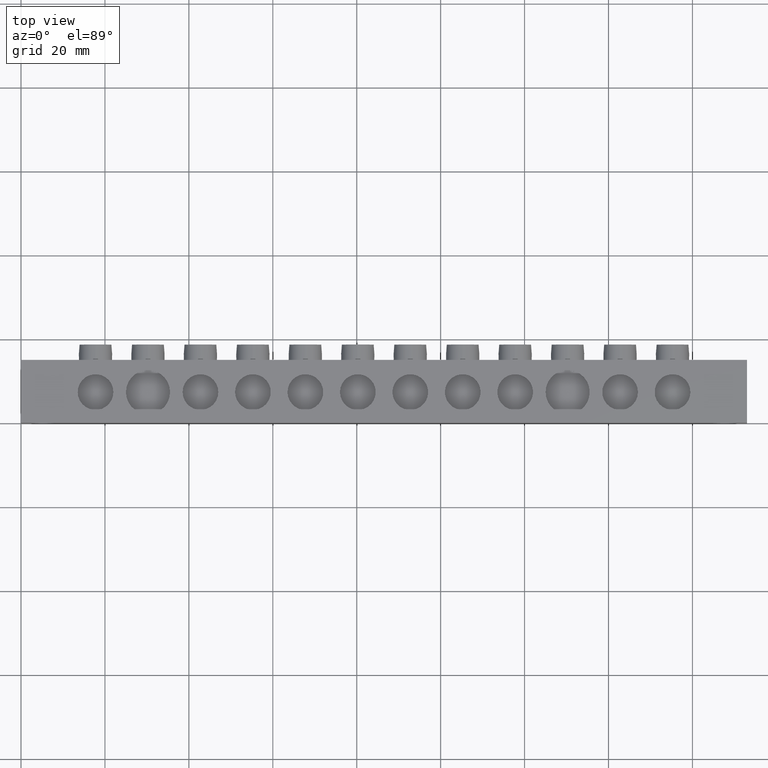
[diagram: clean part render]
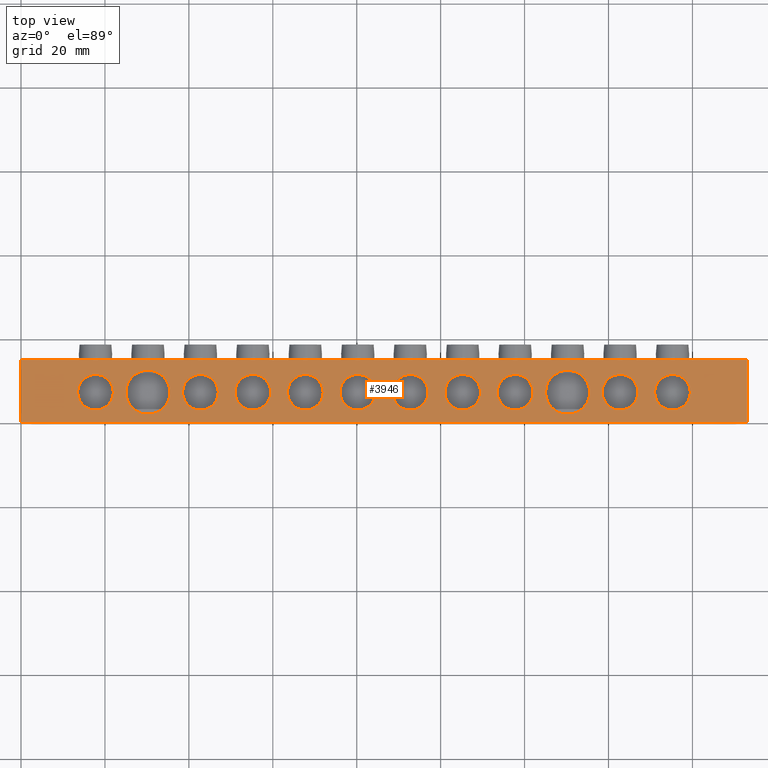
[diagram: same view with one face highlighted and labeled with its STEP entity id]
A machine part, top view. The second image highlights one B-rep face of the part: STEP entity #3946.
In plain terms, the highlighted planar face has unit normal (0, 0, -1).
Its self-contained STEP definition (entity closure, byte-faithful):
#376 = DIRECTION ( 'NONE',  ( 1.000000000000000000, 0.0000000000000000000, 0.0000000000000000000 ) ) ;
#383 = DIRECTION ( 'NONE',  ( 0.0000000000000000000, 0.0000000000000000000, 1.000000000000000000 ) ) ;
#391 = CARTESIAN_POINT ( 'NONE',  ( 142.7500000000000900, 7.299999999999998900, 0.0000000000000000000 ) ) ;
#399 = DIRECTION ( 'NONE',  ( -0.0000000000000000000, -0.0000000000000000000, 1.000000000000000000 ) ) ;
#400 = CARTESIAN_POINT ( 'NONE',  ( 17.75000000000000700, 7.299999999999998900, 0.0000000000000000000 ) ) ;
#406 = DIRECTION ( 'NONE',  ( -1.000000000000000000, 0.0000000000000000000, 0.0000000000000000000 ) ) ;
#540 = CARTESIAN_POINT ( 'NONE',  ( 30.25000000000000000, 7.299999999999998900, 0.0000000000000000000 ) ) ;
#551 = CARTESIAN_POINT ( 'NONE',  ( 105.2500000000000000, 7.299999999999989200, 0.0000000000000000000 ) ) ;
#555 = CARTESIAN_POINT ( 'NONE',  ( 155.2500000000000000, 7.299999999999998900, 0.0000000000000000000 ) ) ;
#559 = DIRECTION ( 'NONE',  ( 0.0000000000000000000, 0.0000000000000000000, 1.000000000000000000 ) ) ;
#567 = DIRECTION ( 'NONE',  ( 1.000000000000000000, 0.0000000000000000000, 0.0000000000000000000 ) ) ;
#568 = DIRECTION ( 'NONE',  ( 1.000000000000000000, 0.0000000000000000000, 0.0000000000000000000 ) ) ;
#577 = DIRECTION ( 'NONE',  ( 0.0000000000000000000, 0.0000000000000000000, 1.000000000000000000 ) ) ;
#578 = DIRECTION ( 'NONE',  ( 0.0000000000000000000, 0.0000000000000000000, 1.000000000000000000 ) ) ;
#587 = DIRECTION ( 'NONE',  ( 1.000000000000000000, 0.0000000000000000000, 0.0000000000000000000 ) ) ;
#590 = CARTESIAN_POINT ( 'NONE',  ( 130.2500000000000000, 7.299999999999998900, 0.0000000000000000000 ) ) ;
#602 = DIRECTION ( 'NONE',  ( -0.0000000000000000000, -0.0000000000000000000, 1.000000000000000000 ) ) ;
#605 = DIRECTION ( 'NONE',  ( -1.000000000000000000, 0.0000000000000000000, 0.0000000000000000000 ) ) ;
#636 = DIRECTION ( 'NONE',  ( 0.0000000000000000000, 0.0000000000000000000, 1.000000000000000000 ) ) ;
#640 = CARTESIAN_POINT ( 'NONE',  ( 117.7500000000000300, 7.299999999999992700, 0.0000000000000000000 ) ) ;
#642 = DIRECTION ( 'NONE',  ( 1.000000000000000000, 0.0000000000000000000, 0.0000000000000000000 ) ) ;
#1768 = AXIS2_PLACEMENT_3D ( 'NONE', #400, #383, #376 ) ;
#1773 = AXIS2_PLACEMENT_3D ( 'NONE', #391, #399, #406 ) ;
#1778 = CIRCLE ( 'NONE', #1773, 4.250000000000003600 ) ;
#1818 = CIRCLE ( 'NONE', #1768, 4.250000000000000000 ) ;
#1821 = CIRCLE ( 'NONE', #1840, 4.250000000000003600 ) ;
#1824 = CIRCLE ( 'NONE', #1871, 5.250000000000004400 ) ;
#1840 = AXIS2_PLACEMENT_3D ( 'NONE', #551, #577, #587 ) ;
#1844 = AXIS2_PLACEMENT_3D ( 'NONE', #555, #578, #568 ) ;
#1849 = CIRCLE ( 'NONE', #1844, 4.250000000000003600 ) ;
#1859 = AXIS2_PLACEMENT_3D ( 'NONE', #540, #559, #567 ) ;
#1867 = CIRCLE ( 'NONE', #1868, 4.250000000000003600 ) ;
#1868 = AXIS2_PLACEMENT_3D ( 'NONE', #640, #636, #642 ) ;
#1869 = CIRCLE ( 'NONE', #1859, 5.249999999999997300 ) ;
#1871 = AXIS2_PLACEMENT_3D ( 'NONE', #590, #602, #605 ) ;
#2120 = CARTESIAN_POINT ( 'NONE',  ( 92.75000000000000000, 7.299999999999954500, 0.0000000000000000000 ) ) ;
#2121 = DIRECTION ( 'NONE',  ( 0.0000000000000000000, 0.0000000000000000000, 1.000000000000000000 ) ) ;
#2122 = DIRECTION ( 'NONE',  ( 1.000000000000000000, 0.0000000000000000000, 0.0000000000000000000 ) ) ;
#2337 = LINE ( 'NONE', #2358, #2807 ) ;
#2338 = LINE ( 'NONE', #2345, #2799 ) ;
#2345 = CARTESIAN_POINT ( 'NONE',  ( 173.0000000000000600, 15.00000000000000000, 0.0000000000000000000 ) ) ;
#2352 = DIRECTION ( 'NONE',  ( 0.0000000000000000000, 1.000000000000000000, -0.0000000000000000000 ) ) ;
#2356 = DIRECTION ( 'NONE',  ( -1.000000000000000000, -0.0000000000000000000, -0.0000000000000000000 ) ) ;
#2358 = CARTESIAN_POINT ( 'NONE',  ( 0.0000000000000000000, 15.00000000000000000, 0.0000000000000000000 ) ) ;
#2362 = CARTESIAN_POINT ( 'NONE',  ( 80.25000000000000000, 7.299999999999918100, 0.0000000000000000000 ) ) ;
#2364 = DIRECTION ( 'NONE',  ( 1.000000000000000000, 0.0000000000000000000, 0.0000000000000000000 ) ) ;
#2371 = CARTESIAN_POINT ( 'NONE',  ( 55.25000000000000700, 7.299999999999849700, 0.0000000000000000000 ) ) ;
#2372 = DIRECTION ( 'NONE',  ( 0.0000000000000000000, 0.0000000000000000000, 1.000000000000000000 ) ) ;
#2378 = DIRECTION ( 'NONE',  ( 1.000000000000000000, 0.0000000000000000000, 0.0000000000000000000 ) ) ;
#2385 = DIRECTION ( 'NONE',  ( 0.0000000000000000000, 0.0000000000000000000, 1.000000000000000000 ) ) ;
#2389 = CARTESIAN_POINT ( 'NONE',  ( 42.75000000000000700, 7.299999999999816000, 0.0000000000000000000 ) ) ;
#2392 = LINE ( 'NONE', #2399, #2849 ) ;
#2399 = CARTESIAN_POINT ( 'NONE',  ( 0.0000000000000000000, 15.00000000000000000, 0.0000000000000000000 ) ) ;
#2401 = LINE ( 'NONE', #2404, #2870 ) ;
#2404 = CARTESIAN_POINT ( 'NONE',  ( 0.0000000000000000000, 0.0000000000000000000, 0.0000000000000000000 ) ) ;
#2407 = DIRECTION ( 'NONE',  ( 0.0000000000000000000, 0.0000000000000000000, 1.000000000000000000 ) ) ;
#2411 = DIRECTION ( 'NONE',  ( 1.000000000000000000, 0.0000000000000000000, 0.0000000000000000000 ) ) ;
#2415 = DIRECTION ( 'NONE',  ( -0.0000000000000000000, -1.000000000000000000, -0.0000000000000000000 ) ) ;
#2425 = DIRECTION ( 'NONE',  ( -1.000000000000000000, -0.0000000000000000000, -0.0000000000000000000 ) ) ;
#2434 = DIRECTION ( 'NONE',  ( 1.000000000000000000, 0.0000000000000000000, 0.0000000000000000000 ) ) ;
#2436 = CARTESIAN_POINT ( 'NONE',  ( 67.75000000000000000, 7.299999999999884400, 0.0000000000000000000 ) ) ;
#2442 = DIRECTION ( 'NONE',  ( 0.0000000000000000000, 0.0000000000000000000, 1.000000000000000000 ) ) ;
#2733 = CIRCLE ( 'NONE', #2767, 4.250000000000003600 ) ;
#2767 = AXIS2_PLACEMENT_3D ( 'NONE', #2120, #2121, #2122 ) ;
#2796 = CIRCLE ( 'NONE', #2830, 4.250000000000003600 ) ;
#2799 = VECTOR ( 'NONE', #2352, 1000.000000000000000 ) ;
#2807 = VECTOR ( 'NONE', #2356, 1000.000000000000000 ) ;
#2810 = CIRCLE ( 'NONE', #2815, 4.250000000000003600 ) ;
#2815 = AXIS2_PLACEMENT_3D ( 'NONE', #2371, #2372, #2378 ) ;
#2830 = AXIS2_PLACEMENT_3D ( 'NONE', #2362, #2385, #2364 ) ;
#2849 = VECTOR ( 'NONE', #2415, 1000.000000000000000 ) ;
#2852 = CIRCLE ( 'NONE', #2853, 4.250000000000003600 ) ;
#2853 = AXIS2_PLACEMENT_3D ( 'NONE', #2389, #2407, #2411 ) ;
#2867 = AXIS2_PLACEMENT_3D ( 'NONE', #2436, #2442, #2434 ) ;
#2870 = VECTOR ( 'NONE', #2425, 1000.000000000000000 ) ;
#2885 = CIRCLE ( 'NONE', #2867, 4.250000000000003600 ) ;
#2910 = CIRCLE ( 'NONE', #2971, 5.250000000000004400 ) ;
#2951 = CIRCLE ( 'NONE', #2961, 4.250000000000003600 ) ;
#2956 = CIRCLE ( 'NONE', #2970, 4.250000000000003600 ) ;
#2961 = AXIS2_PLACEMENT_3D ( 'NONE', #4492, #4514, #4499 ) ;
#2970 = AXIS2_PLACEMENT_3D ( 'NONE', #4707, #4687, #4698 ) ;
#2971 = AXIS2_PLACEMENT_3D ( 'NONE', #4665, #4685, #4657 ) ;
#2975 = AXIS2_PLACEMENT_3D ( 'NONE', #4728, #4729, #4730 ) ;
#2981 = CIRCLE ( 'NONE', #2975, 4.250000000000003600 ) ;
#2989 = AXIS2_PLACEMENT_3D ( 'NONE', #4717, #4710, #4712 ) ;
#2990 = CIRCLE ( 'NONE', #2989, 4.250000000000003600 ) ;
#3007 = CIRCLE ( 'NONE', #3052, 4.250000000000003600 ) ;
#3011 = CIRCLE ( 'NONE', #3049, 4.250000000000003600 ) ;
#3016 = AXIS2_PLACEMENT_3D ( 'NONE', #4538, #4540, #4526 ) ;
#3018 = AXIS2_PLACEMENT_3D ( 'NONE', #3654, #3652, #3628 ) ;
#3019 = CIRCLE ( 'NONE', #3028, 4.250000000000000000 ) ;
#3021 = CIRCLE ( 'NONE', #3022, 4.250000000000003600 ) ;
#3022 = AXIS2_PLACEMENT_3D ( 'NONE', #4557, #4566, #4555 ) ;
#3026 = CIRCLE ( 'NONE', #3018, 5.249999999999997300 ) ;
#3028 = AXIS2_PLACEMENT_3D ( 'NONE', #3642, #3627, #3641 ) ;
#3049 = AXIS2_PLACEMENT_3D ( 'NONE', #4521, #4523, #4525 ) ;
#3052 = AXIS2_PLACEMENT_3D ( 'NONE', #4562, #4569, #4565 ) ;
#3055 = CIRCLE ( 'NONE', #3016, 4.250000000000003600 ) ;
#3483 = CIRCLE ( 'NONE', #3524, 4.250000000000003600 ) ;
#3494 = AXIS2_PLACEMENT_3D ( 'NONE', #5585, #5594, #5607 ) ;
#3524 = AXIS2_PLACEMENT_3D ( 'NONE', #5814, #5809, #5810 ) ;
#3627 = DIRECTION ( 'NONE',  ( 0.0000000000000000000, 0.0000000000000000000, 1.000000000000000000 ) ) ;
#3628 = DIRECTION ( 'NONE',  ( 1.000000000000000000, 0.0000000000000000000, 0.0000000000000000000 ) ) ;
#3641 = DIRECTION ( 'NONE',  ( 1.000000000000000000, 0.0000000000000000000, 0.0000000000000000000 ) ) ;
#3642 = CARTESIAN_POINT ( 'NONE',  ( 17.75000000000000700, 7.299999999999998900, 0.0000000000000000000 ) ) ;
#3652 = DIRECTION ( 'NONE',  ( 0.0000000000000000000, 0.0000000000000000000, 1.000000000000000000 ) ) ;
#3654 = CARTESIAN_POINT ( 'NONE',  ( 30.25000000000000000, 7.299999999999998900, 0.0000000000000000000 ) ) ;
#3659 = CARTESIAN_POINT ( 'NONE',  ( 173.0000000000000600, 0.0000000000000000000, 0.0000000000000000000 ) ) ;
#3668 = CARTESIAN_POINT ( 'NONE',  ( 0.0000000000000000000, 15.00000000000000000, 0.0000000000000000000 ) ) ;
#3680 = CARTESIAN_POINT ( 'NONE',  ( 173.0000000000000600, 15.00000000000000000, 0.0000000000000000000 ) ) ;
#3720 = CARTESIAN_POINT ( 'NONE',  ( 0.0000000000000000000, 0.0000000000000000000, 0.0000000000000000000 ) ) ;
#3819 = CARTESIAN_POINT ( 'NONE',  ( 51.00000000000000700, 7.299999999999850600, 0.0000000000000000000 ) ) ;
#3821 = CARTESIAN_POINT ( 'NONE',  ( 63.50000000000000000, 7.299999999999885200, 0.0000000000000000000 ) ) ;
#3824 = CARTESIAN_POINT ( 'NONE',  ( 38.50000000000000700, 7.299999999999816900, 0.0000000000000000000 ) ) ;
#3835 = CARTESIAN_POINT ( 'NONE',  ( 97.00000000000000000, 7.299999999999954500, 0.0000000000000000000 ) ) ;
#3855 = CARTESIAN_POINT ( 'NONE',  ( 47.00000000000001400, 7.299999999999816000, 0.0000000000000000000 ) ) ;
#3856 = CARTESIAN_POINT ( 'NONE',  ( 59.50000000000001400, 7.299999999999849700, 0.0000000000000000000 ) ) ;
#3946 = ADVANCED_FACE ( 'NONE', ( #5573, #5565, #5597, #5612, #5534, #5550, #5551, #5583, #5624, #5538, #5577, #5592, #5586 ), #5598, .F. ) ;
#4005 = EDGE_CURVE ( 'NONE', #7408, #7425, #3483, .T. ) ;
#4159 = EDGE_CURVE ( 'NONE', #7462, #7504, #2733, .T. ) ;
#4210 = EDGE_CURVE ( 'NONE', #7270, #7291, #2338, .T. ) ;
#4211 = EDGE_CURVE ( 'NONE', #7291, #7286, #2337, .T. ) ;
#4214 = EDGE_CURVE ( 'NONE', #7467, #7502, #2796, .T. ) ;
#4219 = EDGE_CURVE ( 'NONE', #7428, #7447, #2810, .T. ) ;
#4225 = EDGE_CURVE ( 'NONE', #7425, #7408, #2852, .T. ) ;
#4230 = EDGE_CURVE ( 'NONE', #7286, #7303, #2392, .T. ) ;
#4232 = EDGE_CURVE ( 'NONE', #7270, #7303, #2401, .T. ) ;
#4236 = EDGE_CURVE ( 'NONE', #7483, #7457, #2885, .T. ) ;
#4301 = EDGE_CURVE ( 'NONE', #7544, #7542, #2910, .T. ) ;
#4307 = EDGE_CURVE ( 'NONE', #7510, #7517, #2956, .T. ) ;
#4312 = EDGE_CURVE ( 'NONE', #7505, #7493, #2990, .T. ) ;
#4320 = EDGE_CURVE ( 'NONE', #7457, #7483, #2981, .T. ) ;
#4323 = EDGE_CURVE ( 'NONE', #7469, #7477, #2951, .T. ) ;
#4334 = EDGE_CURVE ( 'NONE', #7504, #7462, #3011, .T. ) ;
#4335 = EDGE_CURVE ( 'NONE', #7516, #7511, #3055, .T. ) ;
#4339 = EDGE_CURVE ( 'NONE', #7502, #7467, #3007, .T. ) ;
#4344 = EDGE_CURVE ( 'NONE', #7447, #7428, #3021, .T. ) ;
#4480 = EDGE_CURVE ( 'NONE', #7501, #7557, #3026, .T. ) ;
#4486 = EDGE_CURVE ( 'NONE', #7508, #7548, #3019, .T. ) ;
#4492 = CARTESIAN_POINT ( 'NONE',  ( 117.7500000000000300, 7.299999999999992700, 0.0000000000000000000 ) ) ;
#4499 = DIRECTION ( 'NONE',  ( 1.000000000000000000, 0.0000000000000000000, 0.0000000000000000000 ) ) ;
#4514 = DIRECTION ( 'NONE',  ( 0.0000000000000000000, 0.0000000000000000000, 1.000000000000000000 ) ) ;
#4521 = CARTESIAN_POINT ( 'NONE',  ( 92.75000000000000000, 7.299999999999954500, 0.0000000000000000000 ) ) ;
#4523 = DIRECTION ( 'NONE',  ( 0.0000000000000000000, 0.0000000000000000000, 1.000000000000000000 ) ) ;
#4525 = DIRECTION ( 'NONE',  ( 1.000000000000000000, 0.0000000000000000000, 0.0000000000000000000 ) ) ;
#4526 = DIRECTION ( 'NONE',  ( -1.000000000000000000, 0.0000000000000000000, 0.0000000000000000000 ) ) ;
#4538 = CARTESIAN_POINT ( 'NONE',  ( 142.7500000000000900, 7.299999999999998900, 0.0000000000000000000 ) ) ;
#4540 = DIRECTION ( 'NONE',  ( -0.0000000000000000000, -0.0000000000000000000, 1.000000000000000000 ) ) ;
#4555 = DIRECTION ( 'NONE',  ( 1.000000000000000000, 0.0000000000000000000, 0.0000000000000000000 ) ) ;
#4557 = CARTESIAN_POINT ( 'NONE',  ( 55.25000000000000700, 7.299999999999849700, 0.0000000000000000000 ) ) ;
#4562 = CARTESIAN_POINT ( 'NONE',  ( 80.25000000000000000, 7.299999999999918100, 0.0000000000000000000 ) ) ;
#4565 = DIRECTION ( 'NONE',  ( 1.000000000000000000, 0.0000000000000000000, 0.0000000000000000000 ) ) ;
#4566 = DIRECTION ( 'NONE',  ( 0.0000000000000000000, 0.0000000000000000000, 1.000000000000000000 ) ) ;
#4569 = DIRECTION ( 'NONE',  ( 0.0000000000000000000, 0.0000000000000000000, 1.000000000000000000 ) ) ;
#4657 = DIRECTION ( 'NONE',  ( -1.000000000000000000, 0.0000000000000000000, 0.0000000000000000000 ) ) ;
#4665 = CARTESIAN_POINT ( 'NONE',  ( 130.2500000000000000, 7.299999999999998900, 0.0000000000000000000 ) ) ;
#4685 = DIRECTION ( 'NONE',  ( -0.0000000000000000000, -0.0000000000000000000, 1.000000000000000000 ) ) ;
#4687 = DIRECTION ( 'NONE',  ( 0.0000000000000000000, 0.0000000000000000000, 1.000000000000000000 ) ) ;
#4698 = DIRECTION ( 'NONE',  ( 1.000000000000000000, 0.0000000000000000000, 0.0000000000000000000 ) ) ;
#4707 = CARTESIAN_POINT ( 'NONE',  ( 155.2500000000000000, 7.299999999999998900, 0.0000000000000000000 ) ) ;
#4710 = DIRECTION ( 'NONE',  ( 0.0000000000000000000, 0.0000000000000000000, 1.000000000000000000 ) ) ;
#4712 = DIRECTION ( 'NONE',  ( 1.000000000000000000, 0.0000000000000000000, 0.0000000000000000000 ) ) ;
#4717 = CARTESIAN_POINT ( 'NONE',  ( 105.2500000000000000, 7.299999999999989200, 0.0000000000000000000 ) ) ;
#4728 = CARTESIAN_POINT ( 'NONE',  ( 67.75000000000000000, 7.299999999999884400, 0.0000000000000000000 ) ) ;
#4729 = DIRECTION ( 'NONE',  ( 0.0000000000000000000, 0.0000000000000000000, 1.000000000000000000 ) ) ;
#4730 = DIRECTION ( 'NONE',  ( 1.000000000000000000, 0.0000000000000000000, 0.0000000000000000000 ) ) ;
#5534 = FACE_BOUND ( 'NONE', #7034, .T. ) ;
#5538 = FACE_BOUND ( 'NONE', #7041, .T. ) ;
#5550 = FACE_BOUND ( 'NONE', #7064, .T. ) ;
#5551 = FACE_BOUND ( 'NONE', #7059, .T. ) ;
#5565 = FACE_BOUND ( 'NONE', #6959, .T. ) ;
#5573 = FACE_BOUND ( 'NONE', #7024, .T. ) ;
#5577 = FACE_BOUND ( 'NONE', #7019, .T. ) ;
#5583 = FACE_BOUND ( 'NONE', #7013, .T. ) ;
#5585 = CARTESIAN_POINT ( 'NONE',  ( 0.0000000000000000000, 15.00000000000000000, 0.0000000000000000000 ) ) ;
#5586 = FACE_OUTER_BOUND ( 'NONE', #7025, .T. ) ;
#5592 = FACE_BOUND ( 'NONE', #7051, .T. ) ;
#5594 = DIRECTION ( 'NONE',  ( 0.0000000000000000000, 0.0000000000000000000, -1.000000000000000000 ) ) ;
#5597 = FACE_BOUND ( 'NONE', #7045, .T. ) ;
#5598 = PLANE ( 'NONE',  #3494 ) ;
#5607 = DIRECTION ( 'NONE',  ( -1.000000000000000000, 0.0000000000000000000, -0.0000000000000000000 ) ) ;
#5612 = FACE_BOUND ( 'NONE', #7062, .T. ) ;
#5624 = FACE_BOUND ( 'NONE', #7052, .T. ) ;
#5809 = DIRECTION ( 'NONE',  ( 0.0000000000000000000, 0.0000000000000000000, 1.000000000000000000 ) ) ;
#5810 = DIRECTION ( 'NONE',  ( 1.000000000000000000, 0.0000000000000000000, 0.0000000000000000000 ) ) ;
#5814 = CARTESIAN_POINT ( 'NONE',  ( 42.75000000000000700, 7.299999999999816000, 0.0000000000000000000 ) ) ;
#6959 = EDGE_LOOP ( 'NONE', ( #7803, #7862 ) ) ;
#7013 = EDGE_LOOP ( 'NONE', ( #7847, #7805 ) ) ;
#7019 = EDGE_LOOP ( 'NONE', ( #7789, #7807 ) ) ;
#7024 = EDGE_LOOP ( 'NONE', ( #7833, #7836 ) ) ;
#7025 = EDGE_LOOP ( 'NONE', ( #7785, #7818, #7795, #7782 ) ) ;
#7034 = EDGE_LOOP ( 'NONE', ( #7819, #7865 ) ) ;
#7041 = EDGE_LOOP ( 'NONE', ( #7820, #7817 ) ) ;
#7045 = EDGE_LOOP ( 'NONE', ( #7848, #7837 ) ) ;
#7051 = EDGE_LOOP ( 'NONE', ( #7811, #7808 ) ) ;
#7052 = EDGE_LOOP ( 'NONE', ( #7806, #7827 ) ) ;
#7059 = EDGE_LOOP ( 'NONE', ( #7823, #7898 ) ) ;
#7062 = EDGE_LOOP ( 'NONE', ( #7868, #7895 ) ) ;
#7064 = EDGE_LOOP ( 'NONE', ( #7897, #7853 ) ) ;
#7270 = VERTEX_POINT ( 'NONE', #3659 ) ;
#7286 = VERTEX_POINT ( 'NONE', #3668 ) ;
#7291 = VERTEX_POINT ( 'NONE', #3680 ) ;
#7303 = VERTEX_POINT ( 'NONE', #3720 ) ;
#7408 = VERTEX_POINT ( 'NONE', #3824 ) ;
#7425 = VERTEX_POINT ( 'NONE', #3855 ) ;
#7428 = VERTEX_POINT ( 'NONE', #3856 ) ;
#7447 = VERTEX_POINT ( 'NONE', #3819 ) ;
#7457 = VERTEX_POINT ( 'NONE', #3821 ) ;
#7462 = VERTEX_POINT ( 'NONE', #3835 ) ;
#7467 = VERTEX_POINT ( 'NONE', #8063 ) ;
#7469 = VERTEX_POINT ( 'NONE', #8064 ) ;
#7477 = VERTEX_POINT ( 'NONE', #7904 ) ;
#7483 = VERTEX_POINT ( 'NONE', #7922 ) ;
#7493 = VERTEX_POINT ( 'NONE', #7911 ) ;
#7501 = VERTEX_POINT ( 'NONE', #7931 ) ;
#7502 = VERTEX_POINT ( 'NONE', #7937 ) ;
#7504 = VERTEX_POINT ( 'NONE', #7923 ) ;
#7505 = VERTEX_POINT ( 'NONE', #7935 ) ;
#7508 = VERTEX_POINT ( 'NONE', #7932 ) ;
#7510 = VERTEX_POINT ( 'NONE', #7936 ) ;
#7511 = VERTEX_POINT ( 'NONE', #7934 ) ;
#7516 = VERTEX_POINT ( 'NONE', #7949 ) ;
#7517 = VERTEX_POINT ( 'NONE', #7969 ) ;
#7542 = VERTEX_POINT ( 'NONE', #7961 ) ;
#7544 = VERTEX_POINT ( 'NONE', #7963 ) ;
#7548 = VERTEX_POINT ( 'NONE', #7968 ) ;
#7557 = VERTEX_POINT ( 'NONE', #8001 ) ;
#7782 = ORIENTED_EDGE ( 'NONE', *, *, #4210, .T. ) ;
#7785 = ORIENTED_EDGE ( 'NONE', *, *, #4211, .T. ) ;
#7789 = ORIENTED_EDGE ( 'NONE', *, *, #8264, .F. ) ;
#7795 = ORIENTED_EDGE ( 'NONE', *, *, #4232, .F. ) ;
#7803 = ORIENTED_EDGE ( 'NONE', *, *, #4219, .F. ) ;
#7805 = ORIENTED_EDGE ( 'NONE', *, *, #4301, .F. ) ;
#7806 = ORIENTED_EDGE ( 'NONE', *, *, #8215, .F. ) ;
#7807 = ORIENTED_EDGE ( 'NONE', *, *, #4480, .F. ) ;
#7808 = ORIENTED_EDGE ( 'NONE', *, *, #4486, .F. ) ;
#7811 = ORIENTED_EDGE ( 'NONE', *, *, #8214, .F. ) ;
#7817 = ORIENTED_EDGE ( 'NONE', *, *, #4307, .F. ) ;
#7818 = ORIENTED_EDGE ( 'NONE', *, *, #4230, .T. ) ;
#7819 = ORIENTED_EDGE ( 'NONE', *, *, #4159, .F. ) ;
#7820 = ORIENTED_EDGE ( 'NONE', *, *, #8265, .F. ) ;
#7823 = ORIENTED_EDGE ( 'NONE', *, *, #8270, .F. ) ;
#7827 = ORIENTED_EDGE ( 'NONE', *, *, #4335, .F. ) ;
#7833 = ORIENTED_EDGE ( 'NONE', *, *, #4225, .F. ) ;
#7836 = ORIENTED_EDGE ( 'NONE', *, *, #4005, .F. ) ;
#7837 = ORIENTED_EDGE ( 'NONE', *, *, #4320, .F. ) ;
#7847 = ORIENTED_EDGE ( 'NONE', *, *, #8277, .F. ) ;
#7848 = ORIENTED_EDGE ( 'NONE', *, *, #4236, .F. ) ;
#7853 = ORIENTED_EDGE ( 'NONE', *, *, #4323, .F. ) ;
#7862 = ORIENTED_EDGE ( 'NONE', *, *, #4344, .F. ) ;
#7865 = ORIENTED_EDGE ( 'NONE', *, *, #4334, .F. ) ;
#7868 = ORIENTED_EDGE ( 'NONE', *, *, #4214, .F. ) ;
#7895 = ORIENTED_EDGE ( 'NONE', *, *, #4339, .F. ) ;
#7897 = ORIENTED_EDGE ( 'NONE', *, *, #8291, .F. ) ;
#7898 = ORIENTED_EDGE ( 'NONE', *, *, #4312, .F. ) ;
#7904 = CARTESIAN_POINT ( 'NONE',  ( 122.0000000000000300, 7.299999999999992700, 0.0000000000000000000 ) ) ;
#7911 = CARTESIAN_POINT ( 'NONE',  ( 109.5000000000000000, 7.299999999999989200, 0.0000000000000000000 ) ) ;
#7922 = CARTESIAN_POINT ( 'NONE',  ( 72.00000000000001400, 7.299999999999884400, 0.0000000000000000000 ) ) ;
#7923 = CARTESIAN_POINT ( 'NONE',  ( 88.50000000000000000, 7.299999999999955400, 0.0000000000000000000 ) ) ;
#7931 = CARTESIAN_POINT ( 'NONE',  ( 25.00000000000000000, 7.299999999999999800, 0.0000000000000000000 ) ) ;
#7932 = CARTESIAN_POINT ( 'NONE',  ( 13.50000000000000500, 7.299999999999999800, 0.0000000000000000000 ) ) ;
#7934 = CARTESIAN_POINT ( 'NONE',  ( 147.0000000000000900, 7.299999999999998900, 0.0000000000000000000 ) ) ;
#7935 = CARTESIAN_POINT ( 'NONE',  ( 100.9999999999999900, 7.299999999999990100, 0.0000000000000000000 ) ) ;
#7936 = CARTESIAN_POINT ( 'NONE',  ( 151.0000000000000000, 7.299999999999999800, 0.0000000000000000000 ) ) ;
#7937 = CARTESIAN_POINT ( 'NONE',  ( 76.00000000000000000, 7.299999999999919000, 0.0000000000000000000 ) ) ;
#7949 = CARTESIAN_POINT ( 'NONE',  ( 138.5000000000000600, 7.299999999999999800, 0.0000000000000000000 ) ) ;
#7961 = CARTESIAN_POINT ( 'NONE',  ( 135.5000000000000000, 7.299999999999998900, 0.0000000000000000000 ) ) ;
#7963 = CARTESIAN_POINT ( 'NONE',  ( 125.0000000000000000, 7.299999999999999800, 0.0000000000000000000 ) ) ;
#7968 = CARTESIAN_POINT ( 'NONE',  ( 22.00000000000000700, 7.299999999999998900, 0.0000000000000000000 ) ) ;
#7969 = CARTESIAN_POINT ( 'NONE',  ( 159.5000000000000000, 7.299999999999998900, 0.0000000000000000000 ) ) ;
#8001 = CARTESIAN_POINT ( 'NONE',  ( 35.50000000000000000, 7.299999999999998900, 0.0000000000000000000 ) ) ;
#8063 = CARTESIAN_POINT ( 'NONE',  ( 84.50000000000000000, 7.299999999999918100, 0.0000000000000000000 ) ) ;
#8064 = CARTESIAN_POINT ( 'NONE',  ( 113.5000000000000100, 7.299999999999993600, 0.0000000000000000000 ) ) ;
#8214 = EDGE_CURVE ( 'NONE', #7548, #7508, #1818, .T. ) ;
#8215 = EDGE_CURVE ( 'NONE', #7511, #7516, #1778, .T. ) ;
#8264 = EDGE_CURVE ( 'NONE', #7557, #7501, #1869, .T. ) ;
#8265 = EDGE_CURVE ( 'NONE', #7517, #7510, #1849, .T. ) ;
#8270 = EDGE_CURVE ( 'NONE', #7493, #7505, #1821, .T. ) ;
#8277 = EDGE_CURVE ( 'NONE', #7542, #7544, #1824, .T. ) ;
#8291 = EDGE_CURVE ( 'NONE', #7477, #7469, #1867, .T. ) ;